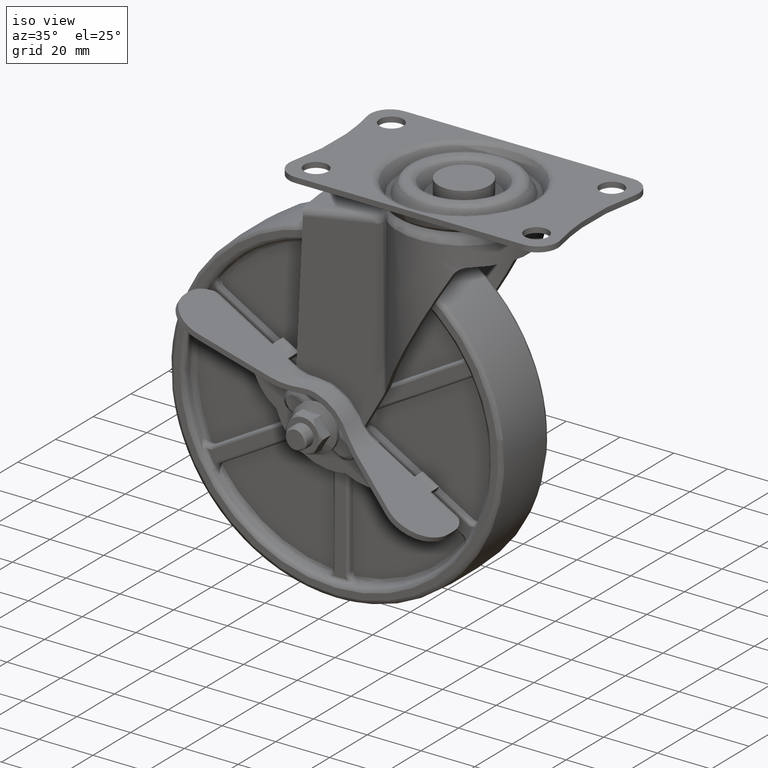
[diagram: clean part render]
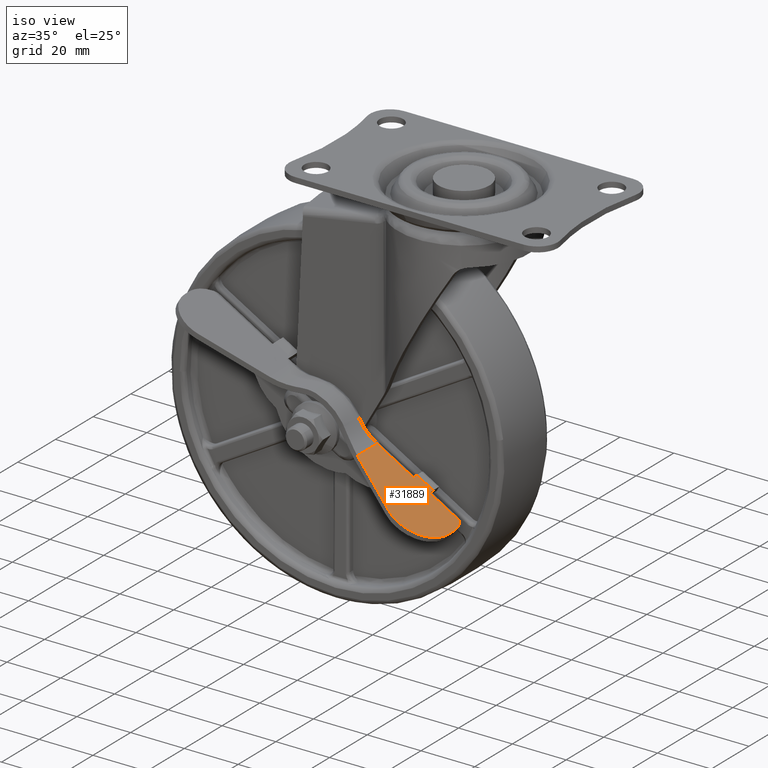
[diagram: same view with one face highlighted and labeled with its STEP entity id]
A machine part, iso view. The second image highlights one B-rep face of the part: STEP entity #31889.
In plain terms, the highlighted face is a freeform B-spline surface patch.
Its self-contained STEP definition (entity closure, byte-faithful):
#31584=CARTESIAN_POINT('',(1.207030865515392,-17.999999999999151,-95.859361269422081));
#31585=VERTEX_POINT('',#31584);
#31591=CARTESIAN_POINT('',(1.207030865515392,-19.999999999999051,-95.859361269422081));
#31592=VERTEX_POINT('',#31591);
#31593=CARTESIAN_POINT('',(1.207030865515392,-19.999999999999051,-95.859361269422081));
#31594=CARTESIAN_POINT('',(1.207030865515392,-17.999999999999151,-95.859361269422081));
#31595=QUASI_UNIFORM_CURVE('',1,(#31593,#31594),.UNSPECIFIED.,.F.,.U.);
#31596=EDGE_CURVE('',#31592,#31585,#31595,.T.);
#31663=CARTESIAN_POINT('',(-4.855146747848544,-19.999999999999051,-92.359361088731504));
#31664=VERTEX_POINT('',#31663);
#31676=CARTESIAN_POINT('',(-4.855145267950945,-17.999999469696700,-92.359358525473624));
#31677=VERTEX_POINT('',#31676);
#31678=CARTESIAN_POINT('',(-4.855145267950945,-17.999999469696700,-92.359358525473624));
#31679=CARTESIAN_POINT('',(-4.855146747848544,-19.999999999999051,-92.359361088731504));
#31680=QUASI_UNIFORM_CURVE('',1,(#31678,#31679),.UNSPECIFIED.,.F.,.U.);
#31681=EDGE_CURVE('',#31677,#31664,#31680,.T.);
#31735=CARTESIAN_POINT('',(-18.303356515732400,-30.554141072892001,-84.595032885315334));
#31736=VERTEX_POINT('',#31735);
#31737=CARTESIAN_POINT('',(-18.303356515732428,-19.999999999999002,-84.595032885315305));
#31738=VERTEX_POINT('',#31737);
#31739=CARTESIAN_POINT('',(-18.303356515732400,-30.554141072892001,-84.595032885315334));
#31740=CARTESIAN_POINT('',(-18.303356515732428,-19.999999999999002,-84.595032885315305));
#31741=QUASI_UNIFORM_CURVE('',1,(#31739,#31740),.UNSPECIFIED.,.F.,.U.);
#31742=EDGE_CURVE('',#31736,#31738,#31741,.T.);
#31798=CARTESIAN_POINT('',(14.024222538070070,-28.349031303413749,-103.259370974019800));
#31799=VERTEX_POINT('',#31798);
#31800=CARTESIAN_POINT('',(14.024222538070070,-24.999999999999051,-103.259370974019800));
#31801=VERTEX_POINT('',#31800);
#31802=CARTESIAN_POINT('',(14.024222538070070,-28.349031303413749,-103.259370974019800));
#31803=CARTESIAN_POINT('',(14.024222538070070,-24.999999999999051,-103.259370974019800));
#31804=QUASI_UNIFORM_CURVE('',1,(#31802,#31803),.UNSPECIFIED.,.F.,.U.);
#31805=EDGE_CURVE('',#31799,#31801,#31804,.T.);
#31829=CARTESIAN_POINT('',(-19.918119026812750,-41.464914050427957,-83.662749233959630));
#31830=CARTESIAN_POINT('',(15.638985916243620,-41.464914050427957,-104.191655125992100));
#31831=CARTESIAN_POINT('',(-19.918119026812750,-16.883686245860879,-83.662749233959630));
#31832=CARTESIAN_POINT('',(15.638985916243620,-16.883686245860879,-104.191655125992100));
#31833=B_SPLINE_SURFACE_WITH_KNOTS('',1,1,((#31829,#31831),(#31830,#31832)),.UNSPECIFIED.,.F.,.F.,.U.,(2,2),(2,2),(0.0,41.057809664418613),(0.0,24.581227804567082),.UNSPECIFIED.);
#31834=CARTESIAN_POINT('',(12.204685462667481,-19.999999999999051,-102.208860662569510));
#31835=VERTEX_POINT('',#31834);
#31836=CARTESIAN_POINT('',(14.024222538070070,-24.999999999999051,-103.259370974019800));
#31837=CARTESIAN_POINT('',(14.024645307084240,-24.245753144952531,-103.259615059845200));
#31838=CARTESIAN_POINT('',(13.884826263823440,-23.259851582121531,-103.178890490575200));
#31839=CARTESIAN_POINT('',(13.298386412390160,-21.528791733413719,-102.840309255103700));
#31840=CARTESIAN_POINT('',(12.743582045428891,-20.608530818899219,-102.519992776693400));
#31841=CARTESIAN_POINT('',(12.204685462667481,-19.999999999999051,-102.208860662569510));
#31842=B_SPLINE_CURVE_WITH_KNOTS('',3,(#31836,#31837,#31838,#31839,#31840,#31841),.UNSPECIFIED.,.F.,.U.,(4,1,1,4),(0.000000044879437,2.262555527502270,2.958723677904809,5.569364081371973),.UNSPECIFIED.);
#31843=EDGE_CURVE('',#31801,#31835,#31842,.T.);
#31844=ORIENTED_EDGE('',*,*,#31843,.T.);
#31845=CARTESIAN_POINT('',(12.204685462667481,-19.999999999999051,-102.208860662569510));
#31846=CARTESIAN_POINT('',(1.207030865515392,-19.999999999999051,-95.859361269422081));
#31847=QUASI_UNIFORM_CURVE('',1,(#31845,#31846),.UNSPECIFIED.,.F.,.U.);
#31848=EDGE_CURVE('',#31835,#31592,#31847,.T.);
#31849=ORIENTED_EDGE('',*,*,#31848,.T.);
#31850=ORIENTED_EDGE('',*,*,#31596,.T.);
#31851=CARTESIAN_POINT('',(-4.855145267950945,-17.999999469696700,-92.359358525473624));
#31852=CARTESIAN_POINT('',(1.207030865515392,-17.999999999999151,-95.859361269422081));
#31853=QUASI_UNIFORM_CURVE('',1,(#31851,#31852),.UNSPECIFIED.,.F.,.U.);
#31854=EDGE_CURVE('',#31677,#31585,#31853,.T.);
#31855=ORIENTED_EDGE('',*,*,#31854,.F.);
#31856=ORIENTED_EDGE('',*,*,#31681,.T.);
#31857=CARTESIAN_POINT('',(-4.855146747848544,-19.999999999999051,-92.359361088731504));
#31858=CARTESIAN_POINT('',(-18.303356515732428,-19.999999999999002,-84.595032885315305));
#31859=QUASI_UNIFORM_CURVE('',1,(#31857,#31858),.UNSPECIFIED.,.F.,.U.);
#31860=EDGE_CURVE('',#31664,#31738,#31859,.T.);
#31861=ORIENTED_EDGE('',*,*,#31860,.T.);
#31862=ORIENTED_EDGE('',*,*,#31742,.F.);
#31863=CARTESIAN_POINT('',(-0.459991754820841,-39.379671870038813,-94.896905389920477));
#31864=VERTEX_POINT('',#31863);
#31865=CARTESIAN_POINT('',(-0.459991754820841,-39.379671870038813,-94.896905389920477));
#31866=CARTESIAN_POINT('',(-18.303356515732400,-30.554141072892001,-84.595032885315334));
#31867=QUASI_UNIFORM_CURVE('',1,(#31865,#31866),.UNSPECIFIED.,.F.,.U.);
#31868=EDGE_CURVE('',#31864,#31736,#31867,.T.);
#31869=ORIENTED_EDGE('',*,*,#31868,.F.);
#31870=CARTESIAN_POINT('',(-0.459991754820841,-39.379671870038813,-94.896905389920477));
#31871=CARTESIAN_POINT('',(0.424489101773091,-39.817650521753023,-95.407560675765978));
#31872=CARTESIAN_POINT('',(1.830891276345959,-40.258946583875222,-96.219547392020132));
#31873=CARTESIAN_POINT('',(4.185137194929091,-40.415500306752392,-97.578771982264314));
#31874=CARTESIAN_POINT('',(6.213244357034675,-40.077806772171122,-98.749700267122265));
#31875=CARTESIAN_POINT('',(8.418475886727400,-39.098901290374549,-100.022891364357700));
#31876=CARTESIAN_POINT('',(10.179634264155300,-37.780127876630850,-101.039696695933200));
#31877=CARTESIAN_POINT('',(11.548660184751570,-36.204453088546707,-101.830104237347100));
#31878=CARTESIAN_POINT('',(12.614929518398309,-34.498242971586699,-102.445715173000390));
#31879=CARTESIAN_POINT('',(13.418331590082021,-32.603592326241923,-102.909559617191310));
#31880=CARTESIAN_POINT('',(13.919598008231560,-30.447958936038660,-103.198965952796400));
#31881=CARTESIAN_POINT('',(14.024262930341980,-29.028085621953359,-103.259394288895900));
#31882=CARTESIAN_POINT('',(14.024222538070070,-28.349031303413749,-103.259370974019800));
#31883=B_SPLINE_CURVE_WITH_KNOTS('',3,(#31870,#31871,#31872,#31873,#31874,#31875,#31876,#31877,#31878,#31879,#31880,#31881,#31882),.UNSPECIFIED.,.F.,.U.,(4,1,1,1,1,1,1,1,1,1,4),(0.000000317827745,3.333635241550830,5.000526383492712,8.149013496930508,10.371496243502611,13.149521875149761,15.371976009829361,17.038823806383451,19.446520907518991,21.669028013775709,23.706206849400889),.UNSPECIFIED.);
#31884=EDGE_CURVE('',#31864,#31799,#31883,.T.);
#31885=ORIENTED_EDGE('',*,*,#31884,.T.);
#31886=ORIENTED_EDGE('',*,*,#31805,.T.);
#31887=EDGE_LOOP('',(#31844,#31849,#31850,#31855,#31856,#31861,#31862,#31869,#31885,#31886));
#31888=FACE_OUTER_BOUND('',#31887,.T.);
#31889=ADVANCED_FACE('',(#31888),#31833,.T.);